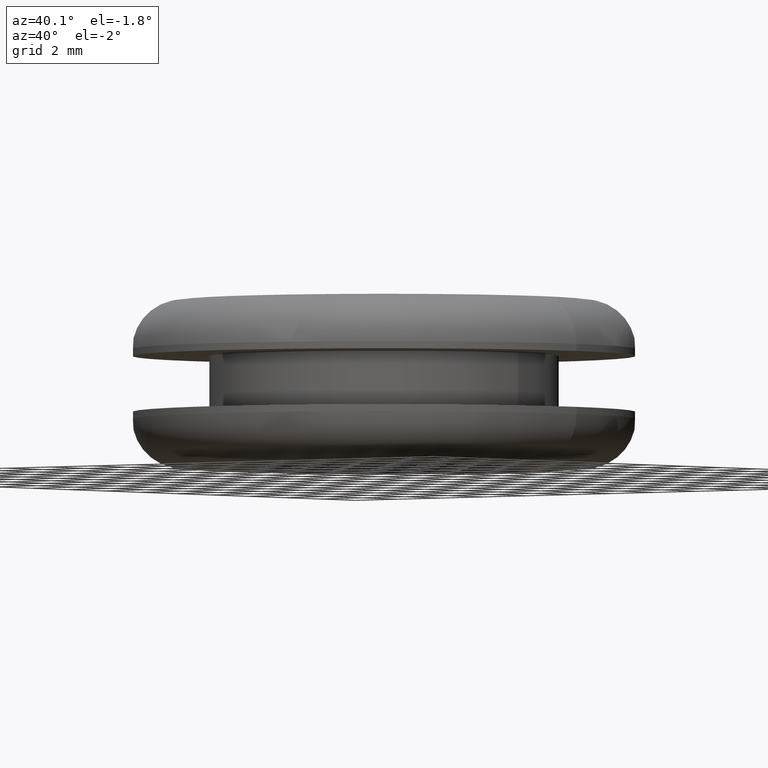
[diagram: clean part render]
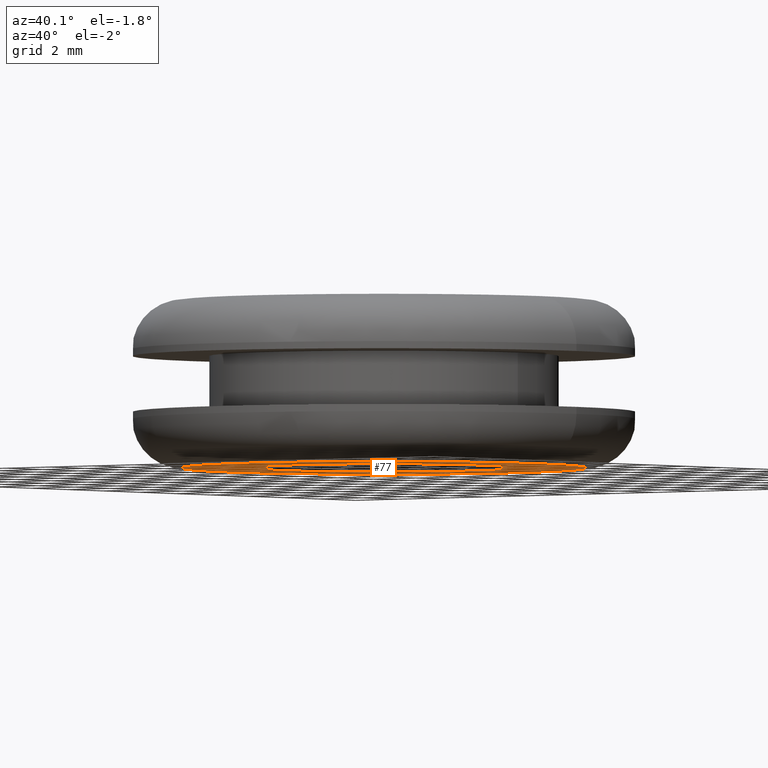
[diagram: same view with one face highlighted and labeled with its STEP entity id]
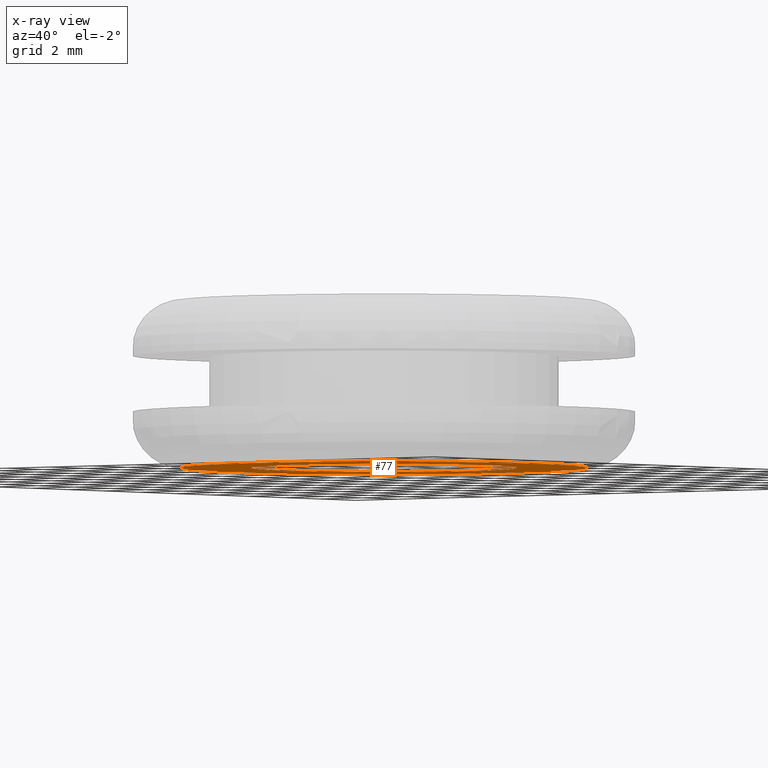
[diagram: x-ray of the same camera — body ghosted, the highlighted face saturated]
A machine part, auxiliary view. The second image highlights one B-rep face of the part: STEP entity #77.
The next image is the same camera in x-ray: the body ghosted, the highlighted face saturated — about 0% of this face is hidden behind the body in this view.
In plain terms, the highlighted planar face has unit normal (0, 0, 1).
Its self-contained STEP definition (entity closure, byte-faithful):
#4 = VERTEX_POINT ( 'NONE', #65 ) ;
#7 = DIRECTION ( 'NONE',  ( 1.000000000000000000, 0.0000000000000000000, 0.0000000000000000000 ) ) ;
#15 = AXIS2_PLACEMENT_3D ( 'NONE', #319, #433, #477 ) ;
#27 = DIRECTION ( 'NONE',  ( 0.0000000000000000000, 0.0000000000000000000, -1.000000000000000000 ) ) ;
#29 = EDGE_CURVE ( 'NONE', #356, #194, #282, .T. ) ;
#30 = DIRECTION ( 'NONE',  ( 0.0000000000000000000, 0.0000000000000000000, 1.000000000000000000 ) ) ;
#36 = CIRCLE ( 'NONE', #307, 4.750000000022000200 ) ;
#49 = EDGE_LOOP ( 'NONE', ( #101, #331 ) ) ;
#55 = FACE_OUTER_BOUND ( 'NONE', #273, .T. ) ;
#57 = CARTESIAN_POINT ( 'NONE',  ( 100.5089284890152000, 0.0000000000000000000, 129.6288681965059800 ) ) ;
#60 = ORIENTED_EDGE ( 'NONE', *, *, #29, .T. ) ;
#65 = CARTESIAN_POINT ( 'NONE',  ( 105.2589284890372000, 5.817072295976868000E-016, 129.6288681965059800 ) ) ;
#71 = EDGE_CURVE ( 'NONE', #88, #4, #339, .T. ) ;
#77 = ADVANCED_FACE ( 'NONE', ( #432, #55 ), #210, .F. ) ;
#84 = CARTESIAN_POINT ( 'NONE',  ( 95.75892848899320600, 0.0000000000000000000, 129.6288681965059800 ) ) ;
#88 = VERTEX_POINT ( 'NONE', #84 ) ;
#94 = AXIS2_PLACEMENT_3D ( 'NONE', #409, #30, #7 ) ;
#97 = DIRECTION ( 'NONE',  ( 0.0000000000000000000, 0.0000000000000000000, -1.000000000000000000 ) ) ;
#101 = ORIENTED_EDGE ( 'NONE', *, *, #71, .F. ) ;
#102 = CARTESIAN_POINT ( 'NONE',  ( 107.7589284890372000, 9.950255243099186200E-016, 129.6288681965059800 ) ) ;
#130 = DIRECTION ( 'NONE',  ( -1.000000000000000000, 0.0000000000000000000, 0.0000000000000000000 ) ) ;
#194 = VERTEX_POINT ( 'NONE', #301 ) ;
#210 = PLANE ( 'NONE',  #94 ) ;
#225 = CIRCLE ( 'NONE', #382, 7.250000000022002800 ) ;
#236 = ORIENTED_EDGE ( 'NONE', *, *, #412, .T. ) ;
#243 = DIRECTION ( 'NONE',  ( 0.0000000000000000000, 0.0000000000000000000, -1.000000000000000000 ) ) ;
#256 = CARTESIAN_POINT ( 'NONE',  ( 100.5089284890152000, 0.0000000000000000000, 129.6288681965059800 ) ) ;
#273 = EDGE_LOOP ( 'NONE', ( #236, #60 ) ) ;
#282 = CIRCLE ( 'NONE', #418, 7.250000000022002800 ) ;
#289 = DIRECTION ( 'NONE',  ( -1.000000000000000000, 0.0000000000000000000, 0.0000000000000000000 ) ) ;
#301 = CARTESIAN_POINT ( 'NONE',  ( 93.25892848899319200, 0.0000000000000000000, 129.6288681965059800 ) ) ;
#307 = AXIS2_PLACEMENT_3D ( 'NONE', #461, #243, #422 ) ;
#319 = CARTESIAN_POINT ( 'NONE',  ( 100.5089284890152000, 0.0000000000000000000, 129.6288681965059800 ) ) ;
#331 = ORIENTED_EDGE ( 'NONE', *, *, #387, .F. ) ;
#339 = CIRCLE ( 'NONE', #15, 4.750000000022000200 ) ;
#356 = VERTEX_POINT ( 'NONE', #102 ) ;
#382 = AXIS2_PLACEMENT_3D ( 'NONE', #57, #97, #130 ) ;
#387 = EDGE_CURVE ( 'NONE', #4, #88, #36, .T. ) ;
#409 = CARTESIAN_POINT ( 'NONE',  ( 107.7589284890371900, 0.0000000000000000000, 129.6288681965059800 ) ) ;
#412 = EDGE_CURVE ( 'NONE', #194, #356, #225, .T. ) ;
#418 = AXIS2_PLACEMENT_3D ( 'NONE', #256, #27, #289 ) ;
#422 = DIRECTION ( 'NONE',  ( -1.000000000000000000, 0.0000000000000000000, 0.0000000000000000000 ) ) ;
#432 = FACE_BOUND ( 'NONE', #49, .T. ) ;
#433 = DIRECTION ( 'NONE',  ( 0.0000000000000000000, 0.0000000000000000000, -1.000000000000000000 ) ) ;
#461 = CARTESIAN_POINT ( 'NONE',  ( 100.5089284890152000, 0.0000000000000000000, 129.6288681965059800 ) ) ;
#477 = DIRECTION ( 'NONE',  ( -1.000000000000000000, 0.0000000000000000000, 0.0000000000000000000 ) ) ;